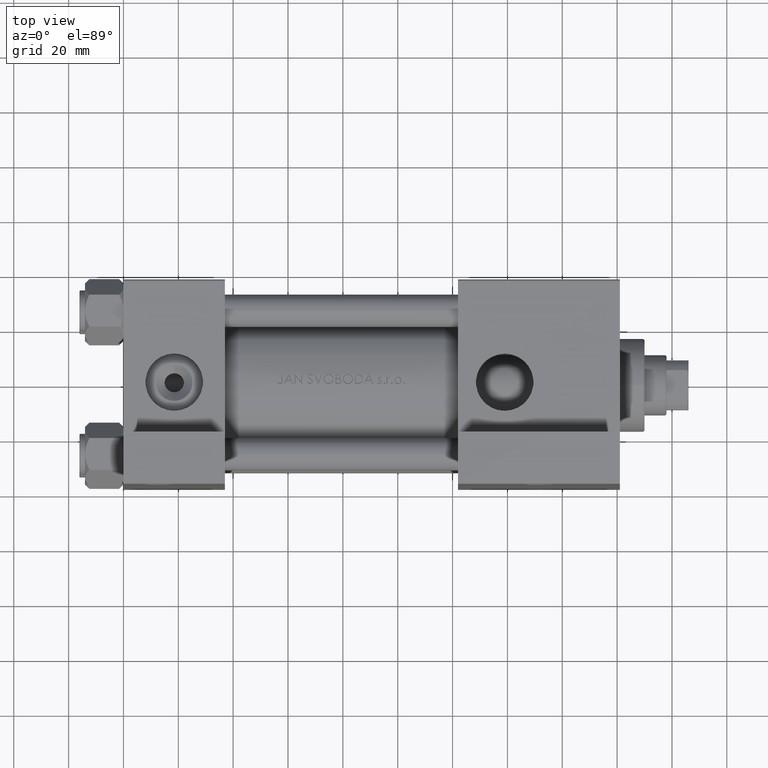
[diagram: clean part render]
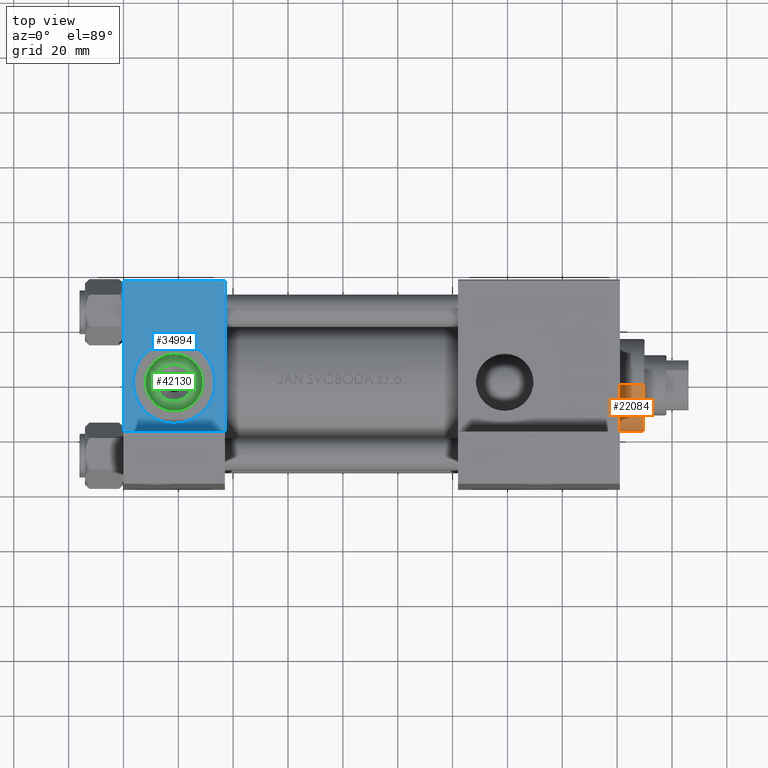
[diagram: same view with three faces highlighted in distinct colors, each labeled with its STEP entity id]
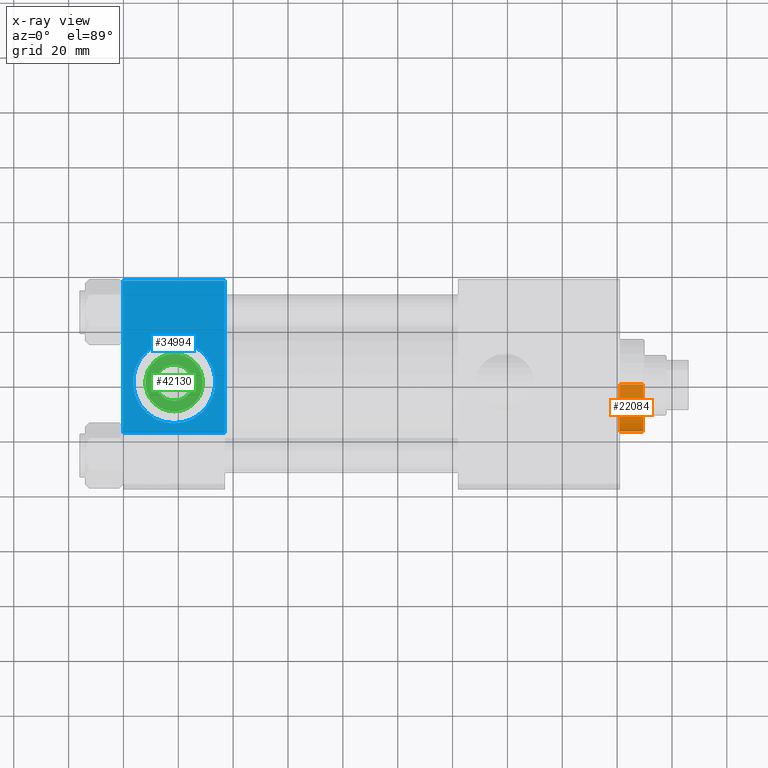
[diagram: x-ray of the same camera — body ghosted, the three highlighted faces saturated]
A machine part, top view with three faces highlighted in distinct colors.
The next image is the same camera in x-ray (body ghosted, the three faces saturated) — at least one of them is partly hidden behind the body in this view.
Their STEP definitions:

[orange] entity #22084 — the highlighted cylindrical surface (partial cylindrical patch) has radius 17 mm, axis along (-1, -0, 0).
#91 = DIRECTION ( 'NONE',  ( 0.000000000000000000, 0.000000000000000000, 1.000000000000000000 ) ) ;
#2125 = AXIS2_PLACEMENT_3D ( 'NONE', #36120, #12731, #5516 ) ;
#5019 = FACE_OUTER_BOUND ( 'NONE', #48666, .T. ) ;
#5065 = CARTESIAN_POINT ( 'NONE',  ( 17.00000000000000000, 2.081899558550500280E-15, 37.69999999999999574 ) ) ;
#5516 = DIRECTION ( 'NONE',  ( -1.000000000000000000, 0.000000000000000000, 0.000000000000000000 ) ) ;
#8437 = EDGE_CURVE ( 'NONE', #46538, #21994, #46226, .T. ) ;
#8921 = VECTOR ( 'NONE', #23062, 1000.000000000000000 ) ;
#12731 = DIRECTION ( 'NONE',  ( -0.000000000000000000, -0.000000000000000000, -1.000000000000000000 ) ) ;
#13030 = LINE ( 'NONE', #5065, #40937 ) ;
#13205 = DIRECTION ( 'NONE',  ( 0.000000000000000000, 0.000000000000000000, -1.000000000000000000 ) ) ;
#17673 = DIRECTION ( 'NONE',  ( 1.000000000000000000, 0.000000000000000000, 0.000000000000000000 ) ) ;
#18303 = CARTESIAN_POINT ( 'NONE',  ( -17.00000000000000000, 0.000000000000000000, 28.69999999999999929 ) ) ;
#21994 = VERTEX_POINT ( 'NONE', #18303 ) ;
#22084 = ADVANCED_FACE ( 'NONE', ( #5019 ), #28175, .T. ) ;
#23062 = DIRECTION ( 'NONE',  ( -0.000000000000000000, -0.000000000000000000, -1.000000000000000000 ) ) ;
#23251 = DIRECTION ( 'NONE',  ( 1.000000000000000000, 0.000000000000000000, 0.000000000000000000 ) ) ;
#23660 = CIRCLE ( 'NONE', #43584, 17.00000000000000000 ) ;
#28175 = CYLINDRICAL_SURFACE ( 'NONE', #2125, 17.00000000000000000 ) ;
#29402 = CARTESIAN_POINT ( 'NONE',  ( 17.00000000000000000, 2.081899558550500280E-15, 37.19999999999999574 ) ) ;
#32364 = CARTESIAN_POINT ( 'NONE',  ( 0.000000000000000000, 0.000000000000000000, 37.19999999999999574 ) ) ;
#32909 = AXIS2_PLACEMENT_3D ( 'NONE', #34205, #91, #23251 ) ;
#34205 = CARTESIAN_POINT ( 'NONE',  ( 0.000000000000000000, 0.000000000000000000, 28.69999999999999929 ) ) ;
#34606 = EDGE_CURVE ( 'NONE', #21994, #40024, #38452, .T. ) ;
#35993 = ORIENTED_EDGE ( 'NONE', *, *, #34606, .T. ) ;
#36108 = EDGE_CURVE ( 'NONE', #42664, #40024, #13030, .T. ) ;
#36120 = CARTESIAN_POINT ( 'NONE',  ( 0.000000000000000000, 0.000000000000000000, 37.69999999999999574 ) ) ;
#38230 = CARTESIAN_POINT ( 'NONE',  ( 17.00000000000000000, 2.081899558550500280E-15, 28.69999999999999929 ) ) ;
#38235 = ORIENTED_EDGE ( 'NONE', *, *, #8437, .T. ) ;
#38452 = CIRCLE ( 'NONE', #32909, 17.00000000000000000 ) ;
#39176 = DIRECTION ( 'NONE',  ( -0.000000000000000000, -0.000000000000000000, -1.000000000000000000 ) ) ;
#40024 = VERTEX_POINT ( 'NONE', #38230 ) ;
#40937 = VECTOR ( 'NONE', #39176, 1000.000000000000000 ) ;
#40989 = ORIENTED_EDGE ( 'NONE', *, *, #47380, .T. ) ;
#42238 = CARTESIAN_POINT ( 'NONE',  ( -17.00000000000000000, 0.000000000000000000, 37.69999999999999574 ) ) ;
#42664 = VERTEX_POINT ( 'NONE', #29402 ) ;
#43584 = AXIS2_PLACEMENT_3D ( 'NONE', #32364, #13205, #17673 ) ;
#45479 = ORIENTED_EDGE ( 'NONE', *, *, #36108, .F. ) ;
#46226 = LINE ( 'NONE', #42238, #8921 ) ;
#46337 = CARTESIAN_POINT ( 'NONE',  ( -17.00000000000000000, 0.000000000000000000, 37.19999999999999574 ) ) ;
#46538 = VERTEX_POINT ( 'NONE', #46337 ) ;
#47380 = EDGE_CURVE ( 'NONE', #42664, #46538, #23660, .T. ) ;
#48666 = EDGE_LOOP ( 'NONE', ( #45479, #40989, #38235, #35993 ) ) ;

[blue] entity #34994 — the highlighted planar face has unit normal (0, 0, -1).
#1157 = CARTESIAN_POINT ( 'NONE',  ( 37.00000000000000000, -37.50000000000000711, 37.49999999999999289 ) ) ;
#2200 = VECTOR ( 'NONE', #39756, 1000.000000000000000 ) ;
#3935 = DIRECTION ( 'NONE',  ( 0.000000000000000000, -1.000000000000000000, -8.673617379884036705E-17 ) ) ;
#4007 = PLANE ( 'NONE',  #39314 ) ;
#4042 = DIRECTION ( 'NONE',  ( -1.000000000000000000, 0.000000000000000000, 0.000000000000000000 ) ) ;
#5860 = ORIENTED_EDGE ( 'NONE', *, *, #24069, .F. ) ;
#6180 = VECTOR ( 'NONE', #4042, 1000.000000000000000 ) ;
#7987 = CARTESIAN_POINT ( 'NONE',  ( 37.00000000000000000, -37.50000000000000711, 37.49999999999999289 ) ) ;
#9757 = CARTESIAN_POINT ( 'NONE',  ( 18.50000000000000355, -37.50000000000000711, 14.99999999999999822 ) ) ;
#10772 = VERTEX_POINT ( 'NONE', #36265 ) ;
#11124 = VERTEX_POINT ( 'NONE', #9757 ) ;
#13115 = LINE ( 'NONE', #39258, #2200 ) ;
#15272 = VERTEX_POINT ( 'NONE', #48619 ) ;
#15709 = DIRECTION ( 'NONE',  ( 0.000000000000000000, -9.251858538542971581E-17, 1.000000000000000000 ) ) ;
#16590 = VECTOR ( 'NONE', #30028, 1000.000000000000000 ) ;
#18347 = ORIENTED_EDGE ( 'NONE', *, *, #19809, .F. ) ;
#19228 = LINE ( 'NONE', #34414, #6180 ) ;
#19361 = ORIENTED_EDGE ( 'NONE', *, *, #27895, .T. ) ;
#19809 = EDGE_CURVE ( 'NONE', #42822, #11124, #46565, .T. ) ;
#20572 = DIRECTION ( 'NONE',  ( 0.000000000000000000, 9.251858538542971581E-17, -1.000000000000000000 ) ) ;
#21242 = ORIENTED_EDGE ( 'NONE', *, *, #47304, .F. ) ;
#22193 = VERTEX_POINT ( 'NONE', #25181 ) ;
#22636 = EDGE_CURVE ( 'NONE', #15272, #22193, #46981, .T. ) ;
#23141 = CARTESIAN_POINT ( 'NONE',  ( 18.50000000000000000, -37.50000000000000711, -15.00000000000000533 ) ) ;
#23561 = EDGE_CURVE ( 'NONE', #34009, #10772, #13115, .T. ) ;
#24069 = EDGE_CURVE ( 'NONE', #22193, #10772, #19228, .T. ) ;
#25181 = CARTESIAN_POINT ( 'NONE',  ( 37.00000000000000000, -37.50000000000000000, -18.50000000000000355 ) ) ;
#26009 = VECTOR ( 'NONE', #20572, 1000.000000000000000 ) ;
#27411 = DIRECTION ( 'NONE',  ( 0.000000000000000000, -1.000000000000000000, -8.673617379884036705E-17 ) ) ;
#27895 = EDGE_CURVE ( 'NONE', #15272, #34009, #44741, .T. ) ;
#30028 = DIRECTION ( 'NONE',  ( -1.000000000000000000, 0.000000000000000000, 0.000000000000000000 ) ) ;
#31141 = DIRECTION ( 'NONE',  ( 0.000000000000000000, 0.000000000000000000, -1.000000000000000000 ) ) ;
#31874 = CARTESIAN_POINT ( 'NONE',  ( 18.50000000000000000, -37.50000000000000711, -3.469446951953614978E-15 ) ) ;
#34009 = VERTEX_POINT ( 'NONE', #36168 ) ;
#34238 = CARTESIAN_POINT ( 'NONE',  ( 37.00000000000000000, -37.50000000000000711, 36.99999999999999289 ) ) ;
#34414 = CARTESIAN_POINT ( 'NONE',  ( -7.145701223179000102E-16, -37.50000000000001421, -18.49999999999999645 ) ) ;
#34994 = ADVANCED_FACE ( 'NONE', ( #46839, #35369 ), #4007, .F. ) ;
#35369 = FACE_OUTER_BOUND ( 'NONE', #43171, .T. ) ;
#36053 = ORIENTED_EDGE ( 'NONE', *, *, #22636, .F. ) ;
#36168 = CARTESIAN_POINT ( 'NONE',  ( 0.000000000000000000, -37.50000000000000711, 36.99999999999999289 ) ) ;
#36265 = CARTESIAN_POINT ( 'NONE',  ( -7.145701223179004046E-16, -37.50000000000000711, -18.50000000000000355 ) ) ;
#37072 = CARTESIAN_POINT ( 'NONE',  ( 18.50000000000000000, -37.50000000000000711, -3.469446951953614978E-15 ) ) ;
#39258 = CARTESIAN_POINT ( 'NONE',  ( 0.000000000000000000, -37.50000000000000711, 37.49999999999999289 ) ) ;
#39314 = AXIS2_PLACEMENT_3D ( 'NONE', #7987, #43094, #15709 ) ;
#39414 = AXIS2_PLACEMENT_3D ( 'NONE', #37072, #3935, #45283 ) ;
#39596 = AXIS2_PLACEMENT_3D ( 'NONE', #31874, #27411, #31141 ) ;
#39756 = DIRECTION ( 'NONE',  ( 0.000000000000000000, 9.251858538542971581E-17, -1.000000000000000000 ) ) ;
#40927 = ORIENTED_EDGE ( 'NONE', *, *, #23561, .T. ) ;
#42755 = CIRCLE ( 'NONE', #39596, 15.00000000000000178 ) ;
#42822 = VERTEX_POINT ( 'NONE', #23141 ) ;
#43094 = DIRECTION ( 'NONE',  ( -0.000000000000000000, 1.000000000000000000, 9.251858538542971581E-17 ) ) ;
#43171 = EDGE_LOOP ( 'NONE', ( #5860, #36053, #19361, #40927 ) ) ;
#44741 = LINE ( 'NONE', #34238, #16590 ) ;
#44801 = EDGE_LOOP ( 'NONE', ( #18347, #21242 ) ) ;
#45283 = DIRECTION ( 'NONE',  ( 0.000000000000000000, 0.000000000000000000, -1.000000000000000000 ) ) ;
#46565 = CIRCLE ( 'NONE', #39414, 15.00000000000000178 ) ;
#46839 = FACE_BOUND ( 'NONE', #44801, .T. ) ;
#46981 = LINE ( 'NONE', #1157, #26009 ) ;
#47304 = EDGE_CURVE ( 'NONE', #11124, #42822, #42755, .T. ) ;
#48619 = CARTESIAN_POINT ( 'NONE',  ( 37.00000000000000000, -37.50000000000000711, 36.99999999999999289 ) ) ;

[green] entity #42130 — the highlighted planar face has unit normal (0, -0, 1).
#752 = ORIENTED_EDGE ( 'NONE', *, *, #37204, .T. ) ;
#803 = ORIENTED_EDGE ( 'NONE', *, *, #38005, .T. ) ;
#2323 = DIRECTION ( 'NONE',  ( 0.000000000000000000, -1.000000000000000000, -8.673617379884036705E-17 ) ) ;
#3051 = CARTESIAN_POINT ( 'NONE',  ( 18.50000000000000000, -26.60000000000000497, -2.524022657546255111E-15 ) ) ;
#3703 = EDGE_LOOP ( 'NONE', ( #29031, #46913 ) ) ;
#3714 = AXIS2_PLACEMENT_3D ( 'NONE', #34972, #39454, #27510 ) ;
#11874 = DIRECTION ( 'NONE',  ( 0.000000000000000000, 8.673617379884036705E-17, -1.000000000000000000 ) ) ;
#13842 = DIRECTION ( 'NONE',  ( -0.000000000000000000, 1.000000000000000000, 8.673617379884036705E-17 ) ) ;
#13930 = CIRCLE ( 'NONE', #41756, 10.48000000000000043 ) ;
#22505 = VERTEX_POINT ( 'NONE', #47233 ) ;
#23814 = FACE_BOUND ( 'NONE', #3703, .T. ) ;
#25065 = CIRCLE ( 'NONE', #33784, 10.48000000000000043 ) ;
#26297 = EDGE_CURVE ( 'NONE', #49268, #33584, #36453, .T. ) ;
#26340 = VERTEX_POINT ( 'NONE', #37472 ) ;
#27199 = CARTESIAN_POINT ( 'NONE',  ( 18.50000000000000000, -26.60000000000000497, -2.524022657546255111E-15 ) ) ;
#27450 = DIRECTION ( 'NONE',  ( 0.000000000000000000, -1.000000000000000000, -8.673617379884036705E-17 ) ) ;
#27496 = CARTESIAN_POINT ( 'NONE',  ( 18.50000000000000000, -26.60000000000000497, 6.640000000000034319 ) ) ;
#27510 = DIRECTION ( 'NONE',  ( 0.000000000000000000, 0.000000000000000000, -1.000000000000000000 ) ) ;
#29031 = ORIENTED_EDGE ( 'NONE', *, *, #45051, .T. ) ;
#30553 = DIRECTION ( 'NONE',  ( 0.000000000000000000, -1.000000000000000000, -8.673617379884036705E-17 ) ) ;
#30773 = EDGE_LOOP ( 'NONE', ( #752, #803 ) ) ;
#33584 = VERTEX_POINT ( 'NONE', #35002 ) ;
#33784 = AXIS2_PLACEMENT_3D ( 'NONE', #3051, #2323, #47893 ) ;
#34030 = CARTESIAN_POINT ( 'NONE',  ( 18.50000000000000000, -26.60000000000000497, -2.524022657546255111E-15 ) ) ;
#34748 = CIRCLE ( 'NONE', #3714, 6.640000000000035207 ) ;
#34972 = CARTESIAN_POINT ( 'NONE',  ( 18.50000000000000000, -26.60000000000000497, -2.524022657546253928E-15 ) ) ;
#35002 = CARTESIAN_POINT ( 'NONE',  ( 18.50000000000000000, -26.60000000000000497, -6.640000000000036984 ) ) ;
#36453 = CIRCLE ( 'NONE', #42828, 6.640000000000035207 ) ;
#37026 = AXIS2_PLACEMENT_3D ( 'NONE', #34030, #30553, #11874 ) ;
#37204 = EDGE_CURVE ( 'NONE', #26340, #22505, #25065, .T. ) ;
#37246 = DIRECTION ( 'NONE',  ( 0.000000000000000000, 0.000000000000000000, -1.000000000000000000 ) ) ;
#37472 = CARTESIAN_POINT ( 'NONE',  ( 18.50000000000000000, -26.60000000000000497, -10.48000000000000220 ) ) ;
#38005 = EDGE_CURVE ( 'NONE', #22505, #26340, #13930, .T. ) ;
#39454 = DIRECTION ( 'NONE',  ( -0.000000000000000000, 1.000000000000000000, 8.673617379884036705E-17 ) ) ;
#39992 = DIRECTION ( 'NONE',  ( 0.000000000000000000, 0.000000000000000000, -1.000000000000000000 ) ) ;
#41756 = AXIS2_PLACEMENT_3D ( 'NONE', #27199, #27450, #37246 ) ;
#42004 = FACE_OUTER_BOUND ( 'NONE', #30773, .T. ) ;
#42130 = ADVANCED_FACE ( 'NONE', ( #23814, #42004 ), #45494, .T. ) ;
#42828 = AXIS2_PLACEMENT_3D ( 'NONE', #43749, #13842, #39992 ) ;
#43749 = CARTESIAN_POINT ( 'NONE',  ( 18.50000000000000000, -26.60000000000000497, -2.524022657546253928E-15 ) ) ;
#45051 = EDGE_CURVE ( 'NONE', #33584, #49268, #34748, .T. ) ;
#45494 = PLANE ( 'NONE',  #37026 ) ;
#46913 = ORIENTED_EDGE ( 'NONE', *, *, #26297, .T. ) ;
#47233 = CARTESIAN_POINT ( 'NONE',  ( 18.50000000000000000, -26.60000000000000497, 10.47999999999999865 ) ) ;
#47893 = DIRECTION ( 'NONE',  ( 0.000000000000000000, 0.000000000000000000, -1.000000000000000000 ) ) ;
#49268 = VERTEX_POINT ( 'NONE', #27496 ) ;